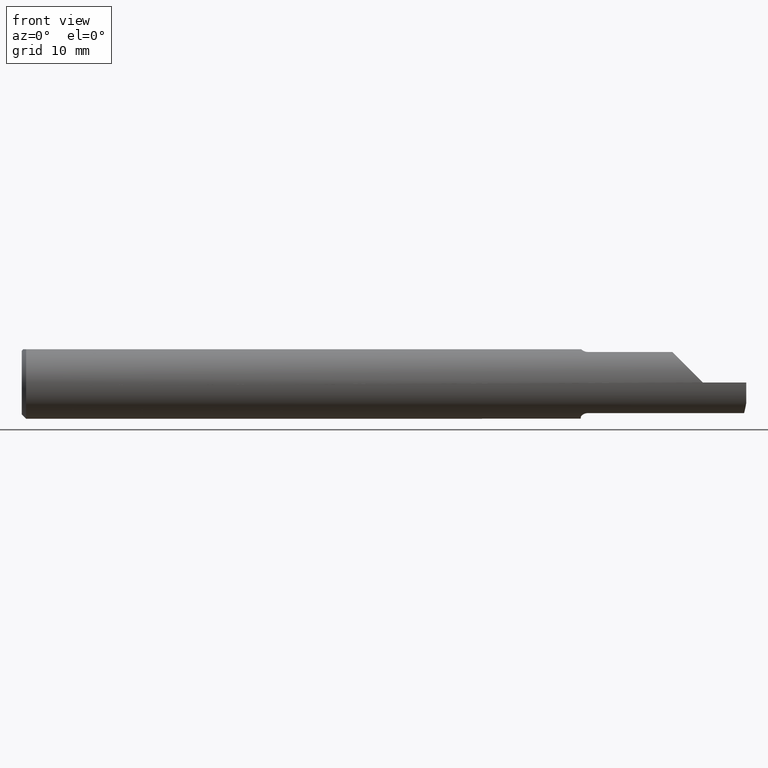
[diagram: clean part render]
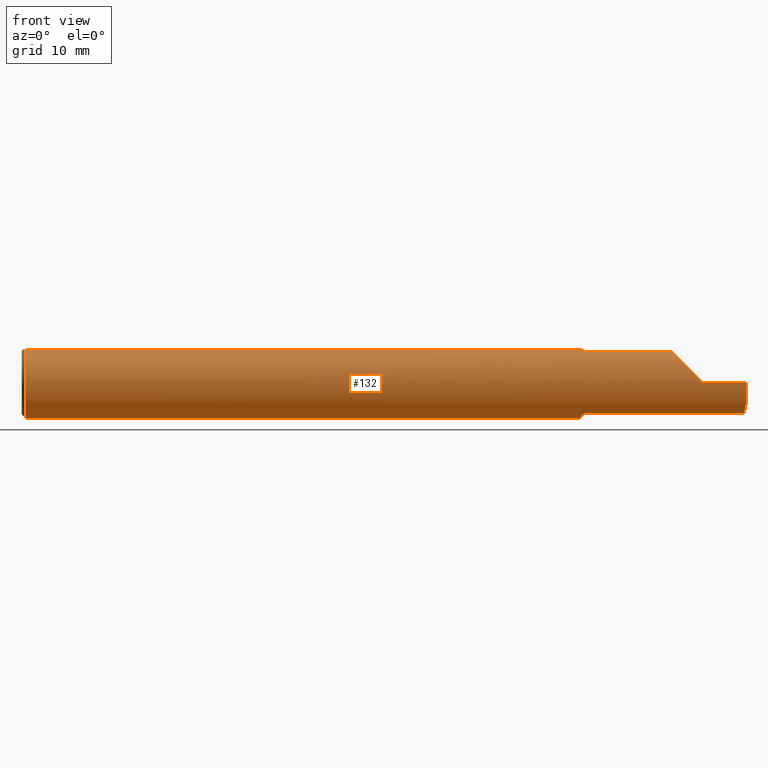
[diagram: same view with one face highlighted and labeled with its STEP entity id]
A machine part, front view. The second image highlights one B-rep face of the part: STEP entity #132.
In plain terms, the highlighted cylindrical surface (edge-blend (fillet) strip) has radius 3.1712 mm, axis along (-1, -0, -0).
Its self-contained STEP definition (entity closure, byte-faithful):
#1 = CARTESIAN_POINT ( 'NONE',  ( 2.492585572526551108, -0.06674575881451196013, -0.1055107870327721409 ) ) ;
#13 = DIRECTION ( 'NONE',  ( 1.000000000000000000, 0.000000000000000000, 0.000000000000000000 ) ) ;
#19 = VERTEX_POINT ( 'NONE', #558 ) ;
#21 = ORIENTED_EDGE ( 'NONE', *, *, #704, .T. ) ;
#39 = VERTEX_POINT ( 'NONE', #795 ) ;
#46 = VERTEX_POINT ( 'NONE', #661 ) ;
#53 = ORIENTED_EDGE ( 'NONE', *, *, #807, .T. ) ;
#61 = CARTESIAN_POINT ( 'NONE',  ( 2.306362915931965851, -0.1247271782974887222, 0.04398708406803463616 ) ) ;
#64 = B_SPLINE_CURVE_WITH_KNOTS ( 'NONE', 3,
 ( #188, #263, #572, #778, #451, #501 ),
 .UNSPECIFIED., .F., .F.,
 ( 4, 2, 4 ),
 ( 0.000000000000000000, 0.0004112572997248619506, 0.0008225145994497239012 ),
 .UNSPECIFIED. ) ;
#70 = EDGE_CURVE ( 'NONE', #309, #141, #656, .T. ) ;
#72 = CARTESIAN_POINT ( 'NONE',  ( 2.350000000000000089, -0.1248495094103296982, 0.0003500000000002680654 ) ) ;
#78 = CARTESIAN_POINT ( 'NONE',  ( 2.350000000000000089, -0.1248500000000000026, -2.465075339897404302E-17 ) ) ;
#90 = ORIENTED_EDGE ( 'NONE', *, *, #402, .T. ) ;
#92 = DIRECTION ( 'NONE',  ( -1.000000000000000000, -0.000000000000000000, -0.000000000000000000 ) ) ;
#100 = DIRECTION ( 'NONE',  ( 1.000000000000000000, 0.000000000000000000, 0.000000000000000000 ) ) ;
#112 = VECTOR ( 'NONE', #135, 39.37007874015748143 ) ;
#117 = ORIENTED_EDGE ( 'NONE', *, *, #728, .T. ) ;
#120 = CIRCLE ( 'NONE', #503, 0.1248500000000000026 ) ;
#126 = EDGE_CURVE ( 'NONE', #743, #19, #120, .T. ) ;
#128 = CARTESIAN_POINT ( 'NONE',  ( 1.930717012709729064, -0.05032294001735261590, -0.1144560936867380085 ) ) ;
#130 = DIRECTION ( 'NONE',  ( -1.000000000000000000, -0.000000000000000000, -0.000000000000000000 ) ) ;
#132 = ADVANCED_FACE ( 'NONE', ( #186 ), #729, .T. ) ;
#135 = DIRECTION ( 'NONE',  ( -1.000000000000000000, -0.000000000000000000, -0.000000000000000000 ) ) ;
#137 = DIRECTION ( 'NONE',  ( 0.000000000000000000, 0.000000000000000000, 1.000000000000000000 ) ) ;
#139 = ORIENTED_EDGE ( 'NONE', *, *, #265, .F. ) ;
#141 = VERTEX_POINT ( 'NONE', #330 ) ;
#144 = CARTESIAN_POINT ( 'NONE',  ( 2.500000000000000000, -0.1248499999999999888, -2.465075339897403686E-17 ) ) ;
#147 = CARTESIAN_POINT ( 'NONE',  ( 1.929000000000000048, -0.03544785385794577137, -0.1197120384792846048 ) ) ;
#153 = VERTEX_POINT ( 'NONE', #460 ) ;
#156 = CARTESIAN_POINT ( 'NONE',  ( 2.500000000000000000, -0.1248500000000000026, -2.465075339897404302E-17 ) ) ;
#167 = VECTOR ( 'NONE', #92, 39.37007874015748143 ) ;
#174 = ORIENTED_EDGE ( 'NONE', *, *, #623, .T. ) ;
#181 = CIRCLE ( 'NONE', #424, 0.1248500000000000026 ) ;
#182 = VERTEX_POINT ( 'NONE', #156 ) ;
#186 = FACE_OUTER_BOUND ( 'NONE', #601, .T. ) ;
#188 = CARTESIAN_POINT ( 'NONE',  ( 1.953999999999999959, -0.06674575881451194626, 0.1055107870327721409 ) ) ;
#192 = AXIS2_PLACEMENT_3D ( 'NONE', #398, #736, #137 ) ;
#217 = VERTEX_POINT ( 'NONE', #406 ) ;
#222 = VERTEX_POINT ( 'NONE', #78 ) ;
#234 = CARTESIAN_POINT ( 'NONE',  ( 2.500000000000000000, -0.1027548813330047828, -0.07091513845604555111 ) ) ;
#256 = CARTESIAN_POINT ( 'NONE',  ( 1.950021003568510602, -0.06674575881451194626, -0.1055107870327721131 ) ) ;
#263 = CARTESIAN_POINT ( 'NONE',  ( 1.948512926777242082, -0.06674575881451194626, 0.1055107870327721686 ) ) ;
#265 = EDGE_CURVE ( 'NONE', #758, #46, #274, .T. ) ;
#267 = VECTOR ( 'NONE', #478, 39.37007874015748143 ) ;
#274 = LINE ( 'NONE', #541, #574 ) ;
#281 = AXIS2_PLACEMENT_3D ( 'NONE', #354, #100, #474 ) ;
#288 = ORIENTED_EDGE ( 'NONE', *, *, #528, .F. ) ;
#293 = LINE ( 'NONE', #545, #430 ) ;
#303 = CARTESIAN_POINT ( 'NONE',  ( 2.394311322083690019, -0.06674575881451196013, -0.1055107870327721409 ) ) ;
#309 = VERTEX_POINT ( 'NONE', #147 ) ;
#313 = EDGE_CURVE ( 'NONE', #447, #141, #293, .T. ) ;
#322 = EDGE_CURVE ( 'NONE', #606, #447, #425, .T. ) ;
#325 = AXIS2_PLACEMENT_3D ( 'NONE', #580, #130, #722 ) ;
#328 = CARTESIAN_POINT ( 'NONE',  ( 1.936931173230982406, -0.05931078277131174997, -0.1099137017871685690 ) ) ;
#330 = CARTESIAN_POINT ( 'NONE',  ( 1.953999999999999959, -0.06674575881451194626, -0.1055107870327721409 ) ) ;
#339 = CARTESIAN_POINT ( 'NONE',  ( 2.500000000000000000, -0.04895916665957456698, 0.1148500000000000076 ) ) ;
#351 = CARTESIAN_POINT ( 'NONE',  ( 2.500000000000000000, -0.06674575881451196013, -0.1055107870327721409 ) ) ;
#354 = CARTESIAN_POINT ( 'NONE',  ( 2.500000000000000000, 0.000000000000000000, 0.000000000000000000 ) ) ;
#367 = ORIENTED_EDGE ( 'NONE', *, *, #322, .F. ) ;
#393 = CARTESIAN_POINT ( 'NONE',  ( 0.01499999999999915637, 0.000000000000000000, 0.000000000000000000 ) ) ;
#398 = CARTESIAN_POINT ( 'NONE',  ( 2.350000000000000089, 0.000000000000000000, 0.000000000000000000 ) ) ;
#402 = EDGE_CURVE ( 'NONE', #606, #39, #662, .T. ) ;
#403 = CARTESIAN_POINT ( 'NONE',  ( 0.01499999999999914770, -0.04895916665957456698, 0.1148500000000000076 ) ) ;
#406 = CARTESIAN_POINT ( 'NONE',  ( 1.931165089549962133, -0.04895916665957456698, 0.1148500000000000076 ) ) ;
#423 = CARTESIAN_POINT ( 'NONE',  ( 2.494944802869536904, -0.08100450677091575180, -0.09649075241015640791 ) ) ;
#424 = AXIS2_PLACEMENT_3D ( 'NONE', #783, #848, #638 ) ;
#425 = LINE ( 'NONE', #351, #167 ) ;
#430 = VECTOR ( 'NONE', #828, 39.37007874015748143 ) ;
#443 = CARTESIAN_POINT ( 'NONE',  ( 1.929000000000000048, 0.04895916665957457392, 0.1148500000000000076 ) ) ;
#444 = CIRCLE ( 'NONE', #192, 0.1248500000000000026 ) ;
#447 = VERTEX_POINT ( 'NONE', #303 ) ;
#449 = DIRECTION ( 'NONE',  ( 0.000000000000000000, 0.000000000000000000, -1.000000000000000000 ) ) ;
#451 = CARTESIAN_POINT ( 'NONE',  ( 1.932833696467886719, -0.05373531148618886089, 0.1128139871958513674 ) ) ;
#460 = CARTESIAN_POINT ( 'NONE',  ( 0.01499999999999915637, 0.04895916665957456698, 0.1148500000000000076 ) ) ;
#463 = CARTESIAN_POINT ( 'NONE',  ( 1.953999999999999959, -0.06674575881451194626, -0.1055107870327721409 ) ) ;
#466 = AXIS2_PLACEMENT_3D ( 'NONE', #649, #724, #567 ) ;
#474 = DIRECTION ( 'NONE',  ( 0.000000000000000000, 0.000000000000000000, -1.000000000000000000 ) ) ;
#478 = DIRECTION ( 'NONE',  ( -1.000000000000000000, -0.000000000000000000, -0.000000000000000000 ) ) ;
#488 = VERTEX_POINT ( 'NONE', #443 ) ;
#501 = CARTESIAN_POINT ( 'NONE',  ( 1.931165089549962133, -0.04895916665957456698, 0.1148500000000000076 ) ) ;
#503 = AXIS2_PLACEMENT_3D ( 'NONE', #393, #800, #449 ) ;
#520 = EDGE_CURVE ( 'NONE', #19, #153, #181, .T. ) ;
#527 = EDGE_CURVE ( 'NONE', #758, #217, #64, .T. ) ;
#528 = EDGE_CURVE ( 'NONE', #309, #488, #670, .T. ) ;
#541 = CARTESIAN_POINT ( 'NONE',  ( 2.155499999999999972, -0.06674575881451194626, 0.1055107870327721409 ) ) ;
#545 = CARTESIAN_POINT ( 'NONE',  ( 2.155499999999999972, -0.06674575881451194626, -0.1055107870327721409 ) ) ;
#558 = CARTESIAN_POINT ( 'NONE',  ( 0.01499999999999915637, 0.000000000000000000, -0.1248500000000000026 ) ) ;
#567 = DIRECTION ( 'NONE',  ( 0.000000000000000000, 0.000000000000000000, -1.000000000000000000 ) ) ;
#572 = CARTESIAN_POINT ( 'NONE',  ( 1.943295400938419570, -0.06462416334000620211, 0.1068895594202840249 ) ) ;
#574 = VECTOR ( 'NONE', #13, 39.37007874015748143 ) ;
#580 = CARTESIAN_POINT ( 'NONE',  ( 2.500000000000000000, 0.000000000000000000, 0.000000000000000000 ) ) ;
#584 = CARTESIAN_POINT ( 'NONE',  ( 2.268168021404922019, -0.1036236216557785833, 0.08218197859507844760 ) ) ;
#593 = LINE ( 'NONE', #339, #112 ) ;
#597 = LINE ( 'NONE', #665, #660 ) ;
#601 = EDGE_LOOP ( 'NONE', ( #367, #90, #762, #53, #117, #614, #139, #625, #21, #747, #628, #174, #288, #868, #818 ) ) ;
#606 = VERTEX_POINT ( 'NONE', #1 ) ;
#609 = CARTESIAN_POINT ( 'NONE',  ( 2.497450015745279028, -0.09317139594753261200, -0.08480145278864946456 ) ) ;
#612 = CARTESIAN_POINT ( 'NONE',  ( 1.953999999999999959, -0.06674575881451194626, 0.1055107870327721409 ) ) ;
#614 = ORIENTED_EDGE ( 'NONE', *, *, #740, .T. ) ;
#623 = EDGE_CURVE ( 'NONE', #153, #488, #597, .T. ) ;
#625 = ORIENTED_EDGE ( 'NONE', *, *, #527, .T. ) ;
#628 = ORIENTED_EDGE ( 'NONE', *, *, #520, .T. ) ;
#638 = DIRECTION ( 'NONE',  ( 0.000000000000000000, 0.000000000000000000, -1.000000000000000000 ) ) ;
#649 = CARTESIAN_POINT ( 'NONE',  ( 1.929000000000000048, 0.000000000000000000, 0.000000000000000000 ) ) ;
#656 = B_SPLINE_CURVE_WITH_KNOTS ( 'NONE', 3,
 ( #864, #861, #128, #328, #859, #668, #256, #463 ),
 .UNSPECIFIED., .F., .F.,
 ( 4, 2, 2, 4 ),
 ( 0.000000000000000000, 0.0005958128942917655666, 0.0008937193414376430915, 0.001191625788583520725 ),
 .UNSPECIFIED. ) ;
#660 = VECTOR ( 'NONE', #804, 39.37007874015748143 ) ;
#661 = CARTESIAN_POINT ( 'NONE',  ( 2.244839212967228104, -0.06674575881451198789, 0.1055107870327721131 ) ) ;
#662 =( BOUNDED_CURVE ( )  B_SPLINE_CURVE ( 3, ( #837, #423, #609, #234 ),
 .UNSPECIFIED., .F., .F. ) 
 B_SPLINE_CURVE_WITH_KNOTS ( ( 4, 4 ),
 ( 1.181333927195137967, 1.584009842849273486 ),
 .UNSPECIFIED. ) 
 CURVE ( )  GEOMETRIC_REPRESENTATION_ITEM ( )  RATIONAL_B_SPLINE_CURVE ( ( 1.000000000000000000, 0.9865332596737929061, 0.9865332596737929061, 1.000000000000000000 ) ) 
 REPRESENTATION_ITEM ( '' )  );
#665 = CARTESIAN_POINT ( 'NONE',  ( 2.500000000000000000, 0.04895916665957456698, 0.1148500000000000076 ) ) ;
#668 = CARTESIAN_POINT ( 'NONE',  ( 1.946166109659049237, -0.06565312228625844182, -0.1062163489814185874 ) ) ;
#670 = CIRCLE ( 'NONE', #466, 0.1248500000000000026 ) ;
#695 = LINE ( 'NONE', #144, #267 ) ;
#704 = EDGE_CURVE ( 'NONE', #217, #743, #593, .T. ) ;
#722 = DIRECTION ( 'NONE',  ( 0.000000000000000000, 0.000000000000000000, 1.000000000000000000 ) ) ;
#724 = DIRECTION ( 'NONE',  ( 1.000000000000000000, 0.000000000000000000, 0.000000000000000000 ) ) ;
#728 = EDGE_CURVE ( 'NONE', #222, #851, #444, .T. ) ;
#729 = CYLINDRICAL_SURFACE ( 'NONE', #325, 0.1248500000000000026 ) ;
#736 = DIRECTION ( 'NONE',  ( -1.000000000000000000, -0.000000000000000000, -0.000000000000000000 ) ) ;
#740 = EDGE_CURVE ( 'NONE', #851, #46, #824, .T. ) ;
#743 = VERTEX_POINT ( 'NONE', #403 ) ;
#747 = ORIENTED_EDGE ( 'NONE', *, *, #126, .T. ) ;
#758 = VERTEX_POINT ( 'NONE', #612 ) ;
#762 = ORIENTED_EDGE ( 'NONE', *, *, #779, .F. ) ;
#778 = CARTESIAN_POINT ( 'NONE',  ( 1.935521963996437833, -0.05807460526863038319, 0.1105848119017751735 ) ) ;
#779 = EDGE_CURVE ( 'NONE', #182, #39, #865, .T. ) ;
#783 = CARTESIAN_POINT ( 'NONE',  ( 0.01499999999999915637, 0.000000000000000000, 0.000000000000000000 ) ) ;
#795 = CARTESIAN_POINT ( 'NONE',  ( 2.500000000000000000, -0.1027548813330047828, -0.07091513845604555111 ) ) ;
#800 = DIRECTION ( 'NONE',  ( 1.000000000000000000, -0.000000000000000000, -0.000000000000000000 ) ) ;
#804 = DIRECTION ( 'NONE',  ( 1.000000000000000000, 0.000000000000000000, 0.000000000000000000 ) ) ;
#807 = EDGE_CURVE ( 'NONE', #182, #222, #695, .T. ) ;
#818 = ORIENTED_EDGE ( 'NONE', *, *, #313, .F. ) ;
#819 = CARTESIAN_POINT ( 'NONE',  ( 2.350000000000000089, -0.1248495094103296982, 0.0003500000000002680654 ) ) ;
#824 =( BOUNDED_CURVE ( )  B_SPLINE_CURVE ( 3, ( #72, #61, #584, #862 ),
 .UNSPECIFIED., .F., .F. ) 
 B_SPLINE_CURVE_WITH_KNOTS ( ( 4, 4 ),
 ( 4.715192348093418140, 5.719141952225705872 ),
 .UNSPECIFIED. ) 
 CURVE ( )  GEOMETRIC_REPRESENTATION_ITEM ( )  RATIONAL_B_SPLINE_CURVE ( ( 1.000000000000000000, 0.9177560538299422976, 0.9177560538299422976, 1.000000000000000000 ) ) 
 REPRESENTATION_ITEM ( '' )  );
#828 = DIRECTION ( 'NONE',  ( -1.000000000000000000, -0.000000000000000000, -0.000000000000000000 ) ) ;
#837 = CARTESIAN_POINT ( 'NONE',  ( 2.492585572526551108, -0.06674575881451196013, -0.1055107870327721409 ) ) ;
#848 = DIRECTION ( 'NONE',  ( 1.000000000000000000, -0.000000000000000000, -0.000000000000000000 ) ) ;
#851 = VERTEX_POINT ( 'NONE', #819 ) ;
#859 = CARTESIAN_POINT ( 'NONE',  ( 1.939619184248488448, -0.06191677978697742585, -0.1084368831979592440 ) ) ;
#861 = CARTESIAN_POINT ( 'NONE',  ( 1.929000000000000048, -0.04301706023810922958, -0.1174707257007782668 ) ) ;
#862 = CARTESIAN_POINT ( 'NONE',  ( 2.244839212967228104, -0.06674575881451198789, 0.1055107870327721131 ) ) ;
#864 = CARTESIAN_POINT ( 'NONE',  ( 1.929000000000000048, -0.03544785385794577137, -0.1197120384792846048 ) ) ;
#865 = CIRCLE ( 'NONE', #281, 0.1248500000000000026 ) ;
#868 = ORIENTED_EDGE ( 'NONE', *, *, #70, .T. ) ;